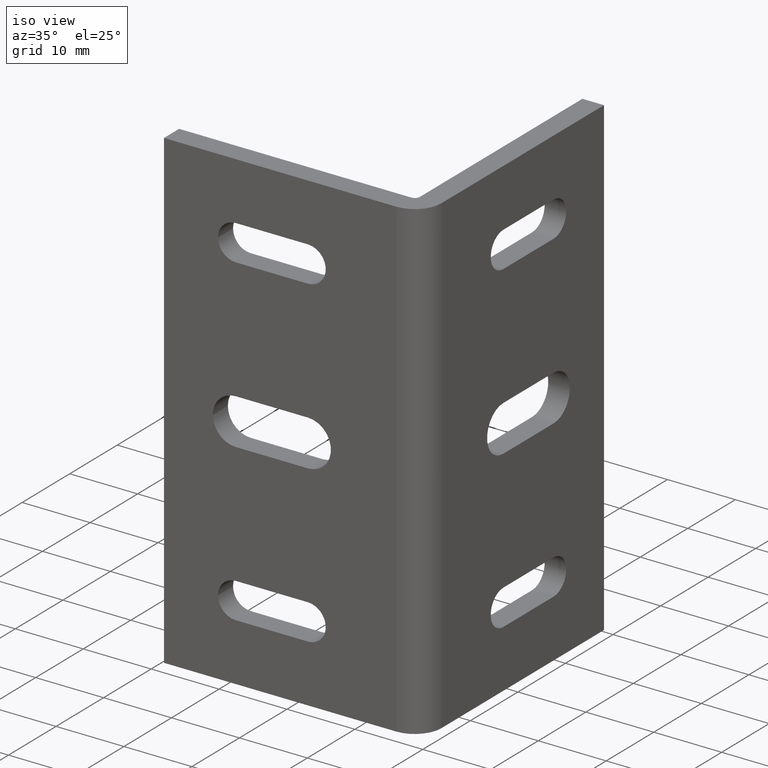
[diagram: clean part render]
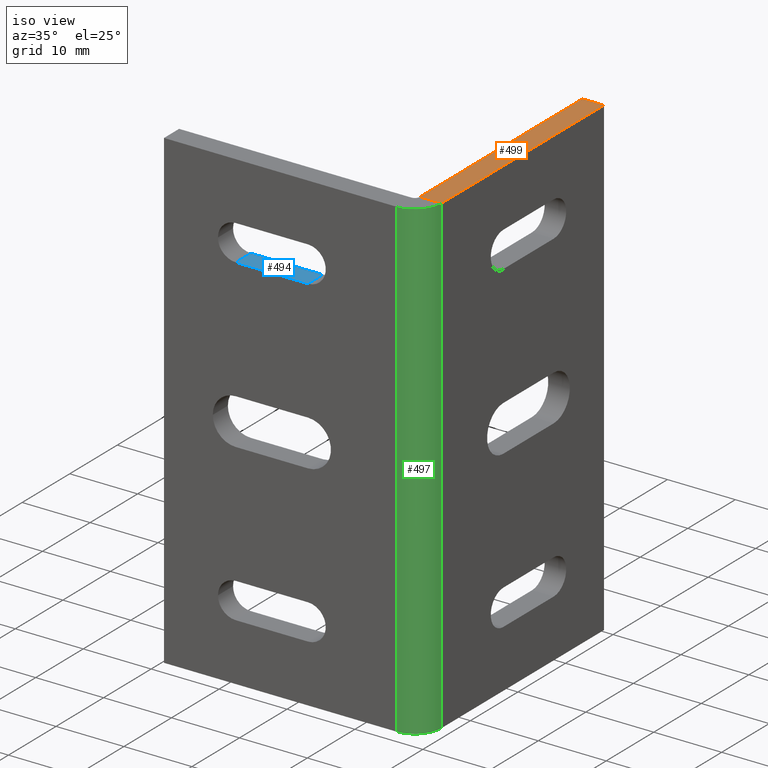
[diagram: same view with three faces highlighted in distinct colors, each labeled with its STEP entity id]
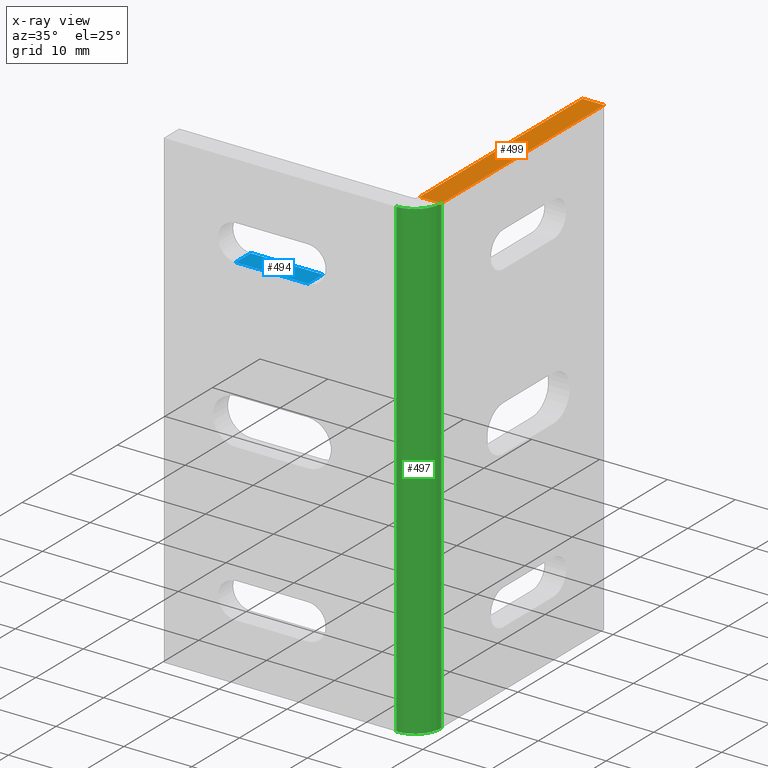
[diagram: x-ray of the same camera — body ghosted, the three highlighted faces saturated]
A machine part, iso view with three faces highlighted in distinct colors.
The next image is the same camera in x-ray (body ghosted, the three faces saturated) — at least one of them is partly hidden behind the body in this view.
Their STEP definitions:

[orange] entity #499 — the highlighted planar face has unit normal (-0, 0, -1).
#104 = VERTEX_POINT ( 'NONE', #1010 ) ;
#126 = VERTEX_POINT ( 'NONE', #955 ) ;
#170 = ORIENTED_EDGE ( 'NONE', *, *, #580, .T. ) ;
#171 = ORIENTED_EDGE ( 'NONE', *, *, #586, .F. ) ;
#172 = ORIENTED_EDGE ( 'NONE', *, *, #1232, .F. ) ;
#178 = ORIENTED_EDGE ( 'NONE', *, *, #570, .T. ) ;
#218 = EDGE_LOOP ( 'NONE', ( #178, #170, #171, #172 ) ) ;
#292 = VECTOR ( 'NONE', #929, 39.37007874015748100 ) ;
#295 = LINE ( 'NONE', #930, #292 ) ;
#315 = LINE ( 'NONE', #788, #316 ) ;
#316 = VECTOR ( 'NONE', #787, 39.37007874015748100 ) ;
#322 = LINE ( 'NONE', #773, #324 ) ;
#324 = VECTOR ( 'NONE', #729, 39.37007874015748100 ) ;
#370 = LINE ( 'NONE', #695, #377 ) ;
#377 = VECTOR ( 'NONE', #694, 39.37007874015748100 ) ;
#499 = ADVANCED_FACE ( 'NONE', ( #877 ), #1139, .F. ) ;
#570 = EDGE_CURVE ( 'NONE', #1206, #104, #295, .T. ) ;
#580 = EDGE_CURVE ( 'NONE', #104, #126, #315, .T. ) ;
#586 = EDGE_CURVE ( 'NONE', #1216, #126, #322, .T. ) ;
#694 = DIRECTION ( 'NONE',  ( 0.0000000000000000000, 1.000000000000000000, 0.0000000000000000000 ) ) ;
#695 = CARTESIAN_POINT ( 'NONE',  ( -0.1249999999999999900, 0.0000000000000000000, 1.375000000000000000 ) ) ;
#724 = CARTESIAN_POINT ( 'NONE',  ( -0.1249999999999999600, 1.500000000000000200, 1.375000000000000000 ) ) ;
#728 = CARTESIAN_POINT ( 'NONE',  ( -0.1249999999999999900, 0.1539999999999999100, 1.375000000000000000 ) ) ;
#729 = DIRECTION ( 'NONE',  ( 1.000000000000000000, 1.232595164407831200E-032, 0.0000000000000000000 ) ) ;
#773 = CARTESIAN_POINT ( 'NONE',  ( -6.248468298276721500, 1.499999999999999800, 1.375000000000000000 ) ) ;
#787 = DIRECTION ( 'NONE',  ( 0.0000000000000000000, 1.000000000000000000, 0.0000000000000000000 ) ) ;
#788 = CARTESIAN_POINT ( 'NONE',  ( 2.408933263771124500E-017, 0.0000000000000000000, 1.375000000000000000 ) ) ;
#877 = FACE_OUTER_BOUND ( 'NONE', #218, .T. ) ;
#929 = DIRECTION ( 'NONE',  ( 1.000000000000000000, 1.232595164407831200E-032, 0.0000000000000000000 ) ) ;
#930 = CARTESIAN_POINT ( 'NONE',  ( -6.248468298276721500, 0.1539999999999999700, 1.375000000000000000 ) ) ;
#955 = CARTESIAN_POINT ( 'NONE',  ( -2.069540552357648100E-015, 1.499999999999999800, 1.375000000000000000 ) ) ;
#1010 = CARTESIAN_POINT ( 'NONE',  ( 0.0000000000000000000, 0.1539999999999996100, 1.375000000000000000 ) ) ;
#1133 = DIRECTION ( 'NONE',  ( -6.123233995736766000E-017, -1.000000000000000000, 0.0000000000000000000 ) ) ;
#1134 = DIRECTION ( 'NONE',  ( -0.0000000000000000000, 0.0000000000000000000, -1.000000000000000000 ) ) ;
#1139 = PLANE ( 'NONE',  #1269 ) ;
#1140 = CARTESIAN_POINT ( 'NONE',  ( -6.248468298276721500, 0.0000000000000000000, 1.375000000000000000 ) ) ;
#1206 = VERTEX_POINT ( 'NONE', #728 ) ;
#1216 = VERTEX_POINT ( 'NONE', #724 ) ;
#1232 = EDGE_CURVE ( 'NONE', #1206, #1216, #370, .T. ) ;
#1269 = AXIS2_PLACEMENT_3D ( 'NONE', #1140, #1134, #1133 ) ;

[blue] entity #494 — the highlighted planar face has unit normal (0, 0, -1).
#26 = ORIENTED_EDGE ( 'NONE', *, *, #542, .T. ) ;
#40 = ORIENTED_EDGE ( 'NONE', *, *, #554, .T. ) ;
#53 = ORIENTED_EDGE ( 'NONE', *, *, #823, .F. ) ;
#87 = VERTEX_POINT ( 'NONE', #115 ) ;
#95 = VERTEX_POINT ( 'NONE', #1038 ) ;
#98 = VERTEX_POINT ( 'NONE', #1028 ) ;
#115 = CARTESIAN_POINT ( 'NONE',  ( -0.6655000000000000900, 0.1249999999999999200, 0.8345000000000000200 ) ) ;
#122 = VERTEX_POINT ( 'NONE', #965 ) ;
#249 = EDGE_LOOP ( 'NONE', ( #26, #1379, #53, #40 ) ) ;
#359 = LINE ( 'NONE', #791, #360 ) ;
#360 = VECTOR ( 'NONE', #790, 39.37007874015748100 ) ;
#494 = ADVANCED_FACE ( 'NONE', ( #870 ), #1155, .F. ) ;
#542 = EDGE_CURVE ( 'NONE', #87, #95, #1327, .T. ) ;
#548 = EDGE_CURVE ( 'NONE', #122, #95, #1334, .T. ) ;
#554 = EDGE_CURVE ( 'NONE', #98, #87, #1351, .T. ) ;
#790 = DIRECTION ( 'NONE',  ( -1.000000000000000000, -1.222485677355726000E-016, -0.0000000000000000000 ) ) ;
#791 = CARTESIAN_POINT ( 'NONE',  ( -1.084500000000000200, -3.244069492476312400E-016, 0.8345000000000000200 ) ) ;
#823 = EDGE_CURVE ( 'NONE', #98, #122, #359, .T. ) ;
#870 = FACE_OUTER_BOUND ( 'NONE', #249, .T. ) ;
#965 = CARTESIAN_POINT ( 'NONE',  ( -1.084500000000000200, -3.244069492476312400E-016, 0.8345000000000000200 ) ) ;
#981 = DIRECTION ( 'NONE',  ( -1.224646799147353900E-016, 1.000000000000000000, -0.0000000000000000000 ) ) ;
#982 = CARTESIAN_POINT ( 'NONE',  ( -0.6655000000000000900, -2.731847993664263200E-016, 0.8345000000000000200 ) ) ;
#997 = DIRECTION ( 'NONE',  ( -1.224646799147353900E-016, 1.000000000000000000, -0.0000000000000000000 ) ) ;
#1004 = CARTESIAN_POINT ( 'NONE',  ( -1.084500000000000200, -3.244069492476312400E-016, 0.8345000000000000200 ) ) ;
#1017 = DIRECTION ( 'NONE',  ( -1.000000000000000000, -1.222485677355726000E-016, -0.0000000000000000000 ) ) ;
#1026 = CARTESIAN_POINT ( 'NONE',  ( -1.084500000000000200, 0.1249999999999998600, 0.8345000000000000200 ) ) ;
#1028 = CARTESIAN_POINT ( 'NONE',  ( -0.6655000000000000900, -2.731847993664263200E-016, 0.8345000000000000200 ) ) ;
#1038 = CARTESIAN_POINT ( 'NONE',  ( -1.084500000000000200, 0.1249999999999998600, 0.8345000000000000200 ) ) ;
#1151 = DIRECTION ( 'NONE',  ( -1.000000000000000000, 0.0000000000000000000, -0.0000000000000000000 ) ) ;
#1152 = DIRECTION ( 'NONE',  ( 0.0000000000000000000, 0.0000000000000000000, -1.000000000000000000 ) ) ;
#1155 = PLANE ( 'NONE',  #1264 ) ;
#1157 = CARTESIAN_POINT ( 'NONE',  ( -1.084500000000000200, -3.244069492476312400E-016, 0.8345000000000000200 ) ) ;
#1264 = AXIS2_PLACEMENT_3D ( 'NONE', #1157, #1152, #1151 ) ;
#1324 = VECTOR ( 'NONE', #1017, 39.37007874015748100 ) ;
#1327 = LINE ( 'NONE', #1026, #1324 ) ;
#1334 = LINE ( 'NONE', #1004, #1339 ) ;
#1339 = VECTOR ( 'NONE', #997, 39.37007874015748100 ) ;
#1351 = LINE ( 'NONE', #982, #1352 ) ;
#1352 = VECTOR ( 'NONE', #981, 39.37007874015748100 ) ;
#1379 = ORIENTED_EDGE ( 'NONE', *, *, #548, .F. ) ;

[green] entity #497 — the highlighted cylindrical surface (edge-blend (fillet) strip) has radius 3.9116 mm, axis along (0, 0, -1).
#89 = VERTEX_POINT ( 'NONE', #112 ) ;
#91 = VERTEX_POINT ( 'NONE', #114 ) ;
#104 = VERTEX_POINT ( 'NONE', #1010 ) ;
#112 = CARTESIAN_POINT ( 'NONE',  ( -0.1539999999999999700, -1.707404996040164500E-017, -1.375000000000000000 ) ) ;
#114 = CARTESIAN_POINT ( 'NONE',  ( -0.1539999999999999400, 0.0000000000000000000, 1.375000000000000000 ) ) ;
#131 = ORIENTED_EDGE ( 'NONE', *, *, #519, .T. ) ;
#133 = ORIENTED_EDGE ( 'NONE', *, *, #822, .F. ) ;
#191 = ORIENTED_EDGE ( 'NONE', *, *, #564, .T. ) ;
#192 = ORIENTED_EDGE ( 'NONE', *, *, #560, .T. ) ;
#251 = EDGE_LOOP ( 'NONE', ( #192, #191, #131, #133 ) ) ;
#348 = LINE ( 'NONE', #793, #352 ) ;
#352 = VECTOR ( 'NONE', #792, 39.37007874015748100 ) ;
#497 = ADVANCED_FACE ( 'NONE', ( #874 ), #881, .T. ) ;
#519 = EDGE_CURVE ( 'NONE', #89, #1203, #904, .T. ) ;
#560 = EDGE_CURVE ( 'NONE', #104, #91, #1365, .T. ) ;
#564 = EDGE_CURVE ( 'NONE', #91, #89, #1360, .T. ) ;
#730 = CARTESIAN_POINT ( 'NONE',  ( 1.644506303074421400E-017, 0.1539999999999999700, -1.375000000000000000 ) ) ;
#792 = DIRECTION ( 'NONE',  ( 0.0000000000000000000, 0.0000000000000000000, -1.000000000000000000 ) ) ;
#793 = CARTESIAN_POINT ( 'NONE',  ( 3.351911299114586000E-017, 0.1539999999999999700, 1.375000000000000000 ) ) ;
#822 = EDGE_CURVE ( 'NONE', #104, #1203, #348, .T. ) ;
#874 = FACE_OUTER_BOUND ( 'NONE', #251, .T. ) ;
#881 = CYLINDRICAL_SURFACE ( 'NONE', #1267, 0.1539999999999999700 ) ;
#904 = CIRCLE ( 'NONE', #1243, 0.1539999999999999700 ) ;
#945 = DIRECTION ( 'NONE',  ( 0.0000000000000000000, 0.0000000000000000000, -1.000000000000000000 ) ) ;
#954 = CARTESIAN_POINT ( 'NONE',  ( -0.1539999999999999700, 0.0000000000000000000, 1.375000000000000000 ) ) ;
#959 = DIRECTION ( 'NONE',  ( -1.000000000000000000, 0.0000000000000000000, 0.0000000000000000000 ) ) ;
#960 = DIRECTION ( 'NONE',  ( 0.0000000000000000000, 0.0000000000000000000, -1.000000000000000000 ) ) ;
#968 = CARTESIAN_POINT ( 'NONE',  ( -0.1539999999999999700, 0.1539999999999999700, 1.375000000000000000 ) ) ;
#1010 = CARTESIAN_POINT ( 'NONE',  ( 0.0000000000000000000, 0.1539999999999996100, 1.375000000000000000 ) ) ;
#1094 = DIRECTION ( 'NONE',  ( -1.000000000000000000, 0.0000000000000000000, 0.0000000000000000000 ) ) ;
#1095 = DIRECTION ( 'NONE',  ( -0.0000000000000000000, -0.0000000000000000000, 1.000000000000000000 ) ) ;
#1097 = CARTESIAN_POINT ( 'NONE',  ( -0.1539999999999999700, 0.1539999999999999700, -1.375000000000000400 ) ) ;
#1146 = DIRECTION ( 'NONE',  ( 0.0000000000000000000, 0.0000000000000000000, -1.000000000000000000 ) ) ;
#1147 = DIRECTION ( 'NONE',  ( -1.000000000000000000, 0.0000000000000000000, 0.0000000000000000000 ) ) ;
#1149 = CARTESIAN_POINT ( 'NONE',  ( -0.1539999999999999700, 0.1539999999999999700, 5.327148468631800200 ) ) ;
#1203 = VERTEX_POINT ( 'NONE', #730 ) ;
#1243 = AXIS2_PLACEMENT_3D ( 'NONE', #1097, #1095, #1094 ) ;
#1267 = AXIS2_PLACEMENT_3D ( 'NONE', #1149, #1146, #1147 ) ;
#1285 = AXIS2_PLACEMENT_3D ( 'NONE', #968, #960, #959 ) ;
#1360 = LINE ( 'NONE', #954, #1370 ) ;
#1365 = CIRCLE ( 'NONE', #1285, 0.1539999999999999700 ) ;
#1370 = VECTOR ( 'NONE', #945, 39.37007874015748100 ) ;